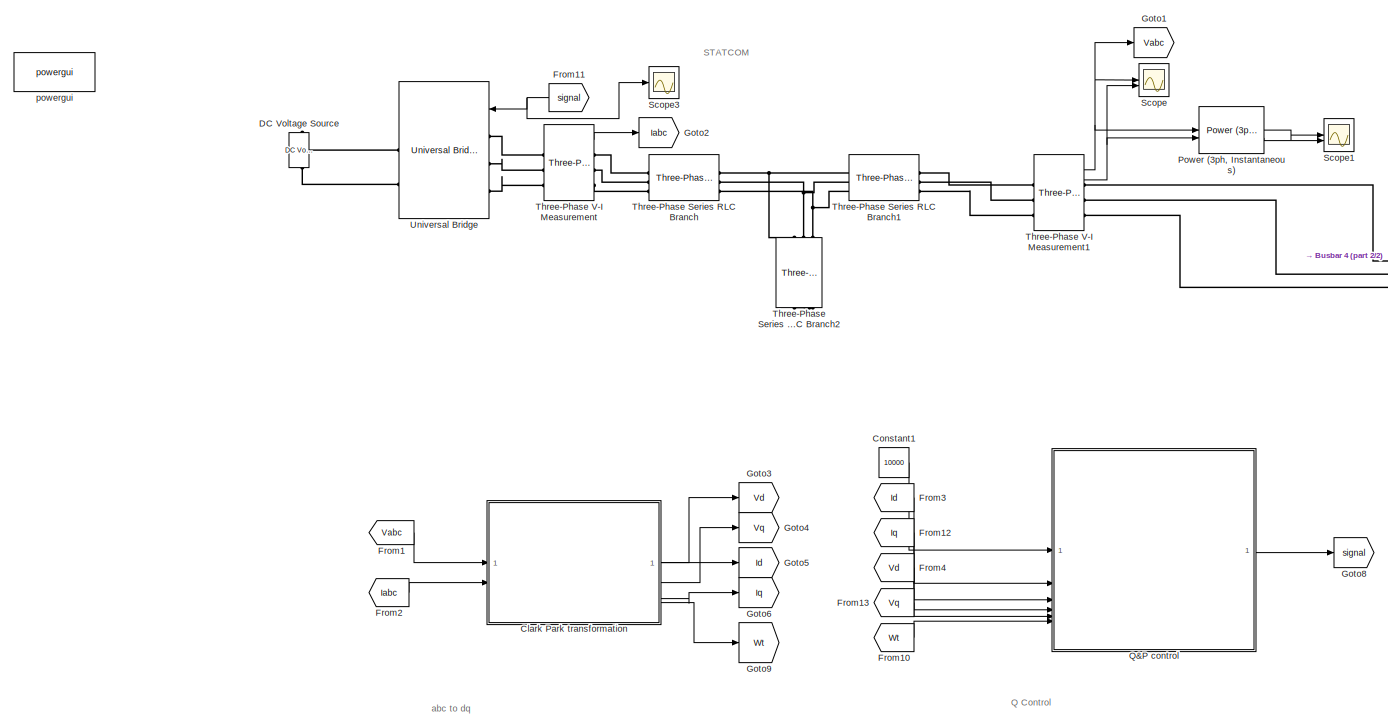
[diagram: root canvas - part 1/2, left side, full height]
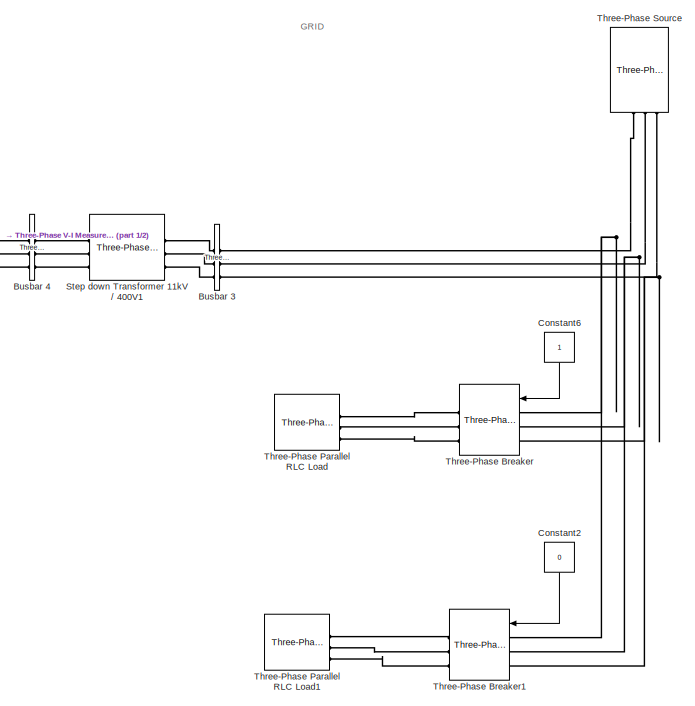
[diagram: root canvas - part 2/2, right side, full height]
MODEL slx_aea7b8782dde
KIND model
CONFIG AbsTol = auto
CONFIG EnableMultiTasking = off
CONFIG FixedStep = auto
CONFIG MaxStep = 1e-4
CONFIG MinStep = auto
CONFIG RelTol = 1e-4
CONFIG SampleTimeConstraint = Unconstrained
CONFIG SolverName = ode23tb
CONFIG StartTime = 0.0
CONFIG StopTime = 1
WORKSPACE source: mxarray member
WORKSPACE Kd_dc = 0.0494240874567
WORKSPACE Ki = 108
WORKSPACE Ki_dc = 1.14837907941
WORKSPACE Kp = 11
WORKSPACE Kp_dc = 0.39412141007
BLOCK [Reference] Busbar 3  REF=spsThreePhaseVIMeasurementLib/Three-Phase
V-I Measurement
  SourceBlock = spsThreePhaseVIMeasurementLib/Three-Phase\nV-I Measurement
  SourceType = Three-Phase VI Measurement
BLOCK [Reference] Busbar 4  REF=spsThreePhaseVIMeasurementLib/Three-Phase
V-I Measurement
  SourceBlock = spsThreePhaseVIMeasurementLib/Three-Phase\nV-I Measurement
  SourceType = Three-Phase VI Measurement
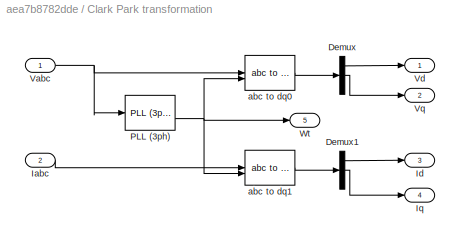
BLOCK [SubSystem] Clark Park transformation
BLOCK [Demux] Clark Park transformation/Demux
  Outputs = 3
BLOCK [Demux] Clark Park transformation/Demux1
  Outputs = 3
BLOCK [Inport] Clark Park transformation/Iabc
  Port = 2
BLOCK [Outport] Clark Park transformation/Id
  Port = 3
BLOCK [Outport] Clark Park transformation/Iq
  Port = 4
BLOCK [Reference] Clark Park transformation/PLL (3ph)  REF=spsPLL3phLib/PLL
(3ph)
  LibrarySourceBlock = sps_lib/Control/PLL\n(3ph)
  SourceBlock = spsPLL3phLib/PLL\n(3ph)
  SourceType = PLL (3ph)
BLOCK [Inport] Clark Park transformation/Vabc
BLOCK [Outport] Clark Park transformation/Vd
BLOCK [Outport] Clark Park transformation/Vq
  Port = 2
BLOCK [Outport] Clark Park transformation/Wt
  Port = 5
BLOCK [Reference] Clark Park transformation/abc to dq0  REF=spsabctodq0Lib/abc to dq0
  LibrarySourceBlock = sps_lib/Control/abc to dq0
  SourceBlock = spsabctodq0Lib/abc to dq0
  SourceType = abc to dq0 Transformation
BLOCK [Reference] Clark Park transformation/abc to dq1  REF=spsabctodq0Lib/abc to dq0
  LibrarySourceBlock = sps_lib/Control/abc to dq0
  SourceBlock = spsabctodq0Lib/abc to dq0
  SourceType = abc to dq0 Transformation
BLOCK [Constant] Constant1
  Value = 10000
BLOCK [Constant] Constant2
  NameLocation = left
  Value = 0
BLOCK [Constant] Constant6
  NameLocation = left
BLOCK [Reference] DC Voltage Source  REF=spsDCVoltageSourceLib/DC Voltage Source
  LibrarySourceBlock = sps_lib/Sources/DC Voltage Source
  SourceBlock = spsDCVoltageSourceLib/DC Voltage Source
  SourceType = DC Voltage Source
BLOCK [From] From1
  GotoTag = Vabc
BLOCK [From] From10
  GotoTag = Wt
BLOCK [From] From11
  GotoTag = signal
BLOCK [From] From12
  GotoTag = Iq
BLOCK [From] From13
  GotoTag = Vq
BLOCK [From] From2
  GotoTag = Iabc
BLOCK [From] From3
  GotoTag = Id
BLOCK [From] From4
  GotoTag = Vd
BLOCK [Goto] Goto1
  GotoTag = Vabc
BLOCK [Goto] Goto2
  GotoTag = Iabc
BLOCK [Goto] Goto3
  GotoTag = Vd
BLOCK [Goto] Goto4
  GotoTag = Vq
BLOCK [Goto] Goto5
  GotoTag = Id
BLOCK [Goto] Goto6
  GotoTag = Iq
BLOCK [Goto] Goto8
  GotoTag = signal
BLOCK [Goto] Goto9
  GotoTag = Wt
BLOCK [Reference] Power (3ph, Instantaneous)  REF=spsPower3phInstantaneousLib/Power
(3ph, Instantaneous)
  LibrarySourceBlock = sps_lib/Sensors and Measurements/Power\n(3ph, Instantaneous)
  SourceBlock = spsPower3phInstantaneousLib/Power\n(3ph, Instantaneous)
  SourceType = Power (3ph, Instantaneous)
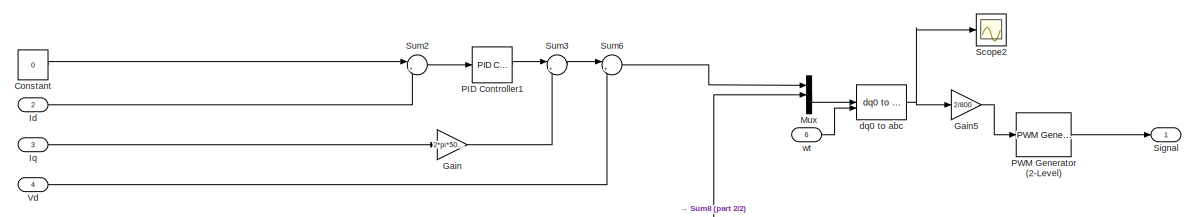
[diagram: Q&P control - part 1/2, full width, top band]
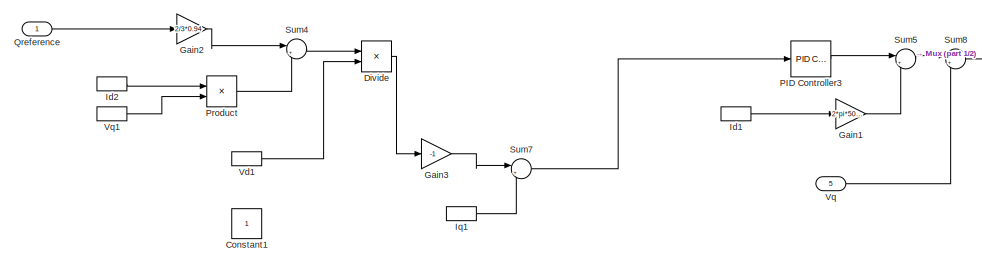
[diagram: Q&P control - part 2/2, bottom left region]
BLOCK [SubSystem] Q&P control
BLOCK [Constant] Q&P control/Constant
  Value = 0
BLOCK [Constant] Q&P control/Constant1
BLOCK [Product] Q&P control/Divide
  Inputs = */
BLOCK [Gain] Q&P control/Gain
  Gain = 2*pi*50*1000e-6
BLOCK [Gain] Q&P control/Gain1
  Gain = 2*pi*50*1000e-6
BLOCK [Gain] Q&P control/Gain2
  Gain = 2/3*0.94
BLOCK [Gain] Q&P control/Gain3
  Gain = -1
BLOCK [Gain] Q&P control/Gain5
  Gain = 2/800
BLOCK [Inport] Q&P control/Id
  Port = 2
BLOCK [InportShadow] Q&P control/Id1
  Port = 2
BLOCK [InportShadow] Q&P control/Id2
  Port = 2
BLOCK [Inport] Q&P control/Iq
  Port = 3
BLOCK [InportShadow] Q&P control/Iq1
  Port = 3
BLOCK [Mux] Q&P control/Mux
  DisplayOption = bar
  Inputs = 3
BLOCK [Reference] Q&P control/PID Controller1  REF=slpidlib/PID Controller
  LibrarySourceBlock = simulink/Continuous/PID Controller
  SourceBlock = slpidlib/PID Controller
  SourceType = PID 1dof
BLOCK [Reference] Q&P control/PID Controller3  REF=slpidlib/PID Controller
  LibrarySourceBlock = simulink/Continuous/PID Controller
  SourceBlock = slpidlib/PID Controller
  SourceType = PID 1dof
BLOCK [Reference] Q&P control/PWM Generator (2-Level)  REF=spsPWMGenerator2LevelLib/PWM Generator
(2-Level)
  LibrarySourceBlock = sps_lib/Power Electronics/Power Electronics Control/PWM Generator\n(2-Level)
  SourceBlock = spsPWMGenerator2LevelLib/PWM Generator\n(2-Level)
  SourceType = PWM Generator (2-Level)
BLOCK [Product] Q&P control/Product
BLOCK [Inport] Q&P control/Qreference
BLOCK [Scope] Q&P control/Scope2
  Floating = off
  NumInputPorts = 1
  ScopeSpecificationString = Simulink.scopes.TimeScopeBlockCfg('CurrentConfiguration', extmgr.ConfigurationSet(extmgr.Configuration('Core','General UI',true),extmgr.Configuration('Core','Source UI',true),extmgr.Configuration('Sources','WiredSimulink',true,'DataLoggingVariableName','ScopeData3'),extmgr.Configuration('Visuals','Time Domain',true,'SerializedDisplays',{struct('MinYLimReal','-21856809829456846848.00000','MaxYLimRe...<+1597ch>
BLOCK [Outport] Q&P control/Signal
BLOCK [Sum] Q&P control/Sum2
  Inputs = |+-
BLOCK [Sum] Q&P control/Sum3
  Inputs = |++
BLOCK [Sum] Q&P control/Sum4
  Inputs = |++
BLOCK [Sum] Q&P control/Sum5
  Inputs = |+-
BLOCK [Sum] Q&P control/Sum6
  Inputs = |++
BLOCK [Sum] Q&P control/Sum7
  Inputs = |+-
BLOCK [Sum] Q&P control/Sum8
  Inputs = |++
BLOCK [Inport] Q&P control/Vd
  Port = 4
BLOCK [InportShadow] Q&P control/Vd1
  Port = 4
BLOCK [Inport] Q&P control/Vq
  Port = 5
BLOCK [InportShadow] Q&P control/Vq1
  Port = 5
BLOCK [Reference] Q&P control/dq0 to abc  REF=spsdq0toabcLib/dq0 to abc
  LibrarySourceBlock = sps_lib/Control/dq0 to abc
  SourceBlock = spsdq0toabcLib/dq0 to abc
  SourceType = dq0 to abc Transformation
BLOCK [Inport] Q&P control/wt
  Port = 6
BLOCK [Scope] Scope
  Floating = off
  NumInputPorts = 2
  ScopeSpecificationString = Simulink.scopes.TimeScopeBlockCfg('CurrentConfiguration', extmgr.ConfigurationSet(extmgr.Configuration('Core','General UI',true),extmgr.Configuration('Core','Source UI',true),extmgr.Configuration('Sources','WiredSimulink',true,'DataLoggingVariableName','ScopeData1'),extmgr.Configuration('Visuals','Time Domain',true,'SerializedDisplays',{struct('MinYLimReal','-311.16531','MaxYLimReal','311.10745','...<+2346ch>
BLOCK [Scope] Scope1
  Floating = off
  NumInputPorts = 2
  ScopeSpecificationString = Simulink.scopes.TimeScopeBlockCfg('CurrentConfiguration', extmgr.ConfigurationSet(extmgr.Configuration('Core','General UI',true),extmgr.Configuration('Core','Source UI',true),extmgr.Configuration('Sources','WiredSimulink',true,'DataLoggingVariableName','ScopeData2'),extmgr.Configuration('Visuals','Time Domain',true,'SerializedDisplays',{struct('MinYLimReal','-2030.62041','MaxYLimReal','1025.75532'...<+2153ch>
BLOCK [Scope] Scope3
  Floating = off
  NumInputPorts = 1
  ScopeSpecificationString = Simulink.scopes.TimeScopeBlockCfg('CurrentConfiguration', extmgr.ConfigurationSet(extmgr.Configuration('Core','General UI',true),extmgr.Configuration('Core','Source UI',true),extmgr.Configuration('Sources','WiredSimulink',true,'DataLoggingVariableName','ScopeData2'),extmgr.Configuration('Visuals','Time Domain',true,'SerializedDisplays',{struct('MinYLimReal','-0.125','MaxYLimReal','1.125','YLabelRe...<+1511ch>
BLOCK [Reference] Step down Transformer 11kV // 400V1  REF=spsThreePhaseTransformerTwoWindingsLib/Three-Phase
Transformer
(Two Windings)
  SourceBlock = spsThreePhaseTransformerTwoWindingsLib/Three-Phase\nTransformer\n(Two Windings)
  SourceType = Three-Phase Transformer (Two Windings)
BLOCK [Reference] Three-Phase Breaker  REF=spsThreePhaseBreakerLib/Three-Phase Breaker
  LibrarySourceBlock = sps_lib/Power Grid Elements/Three-Phase Breaker
  NameLocation = top
  SourceBlock = spsThreePhaseBreakerLib/Three-Phase Breaker
  SourceType = Three-Phase Breaker
BLOCK [Reference] Three-Phase Breaker1  REF=spsThreePhaseBreakerLib/Three-Phase Breaker
  LibrarySourceBlock = sps_lib/Power Grid Elements/Three-Phase Breaker
  NameLocation = top
  SourceBlock = spsThreePhaseBreakerLib/Three-Phase Breaker
  SourceType = Three-Phase Breaker
BLOCK [Reference] Three-Phase Parallel RLC Load  REF=spsThreePhaseParallelRLCLoadLib/Three-Phase
Parallel RLC Load
  AttributesFormatString = \n
  LibrarySourceBlock = sps_lib/Passives/Three-Phase\nParallel RLC Load
  SourceBlock = spsThreePhaseParallelRLCLoadLib/Three-Phase\nParallel RLC Load
  SourceType = Three-Phase Parallel RLC Load
BLOCK [Reference] Three-Phase Parallel RLC Load1  REF=spsThreePhaseParallelRLCLoadLib/Three-Phase
Parallel RLC Load
  AttributesFormatString = \n
  LibrarySourceBlock = sps_lib/Passives/Three-Phase\nParallel RLC Load
  SourceBlock = spsThreePhaseParallelRLCLoadLib/Three-Phase\nParallel RLC Load
  SourceType = Three-Phase Parallel RLC Load
BLOCK [Reference] Three-Phase Series RLC Branch  REF=spsThreePhaseSeriesRLCBranchLib/Three-Phase
Series RLC Branch
  AttributesFormatString = \n
  LibrarySourceBlock = sps_lib/Passives/Three-Phase\nSeries RLC Branch
  SourceBlock = spsThreePhaseSeriesRLCBranchLib/Three-Phase\nSeries RLC Branch
  SourceType = Three-Phase Series RLC Branch
BLOCK [Reference] Three-Phase Series RLC Branch1  REF=spsThreePhaseSeriesRLCBranchLib/Three-Phase
Series RLC Branch
  AttributesFormatString = \n
  LibrarySourceBlock = sps_lib/Passives/Three-Phase\nSeries RLC Branch
  SourceBlock = spsThreePhaseSeriesRLCBranchLib/Three-Phase\nSeries RLC Branch
  SourceType = Three-Phase Series RLC Branch
BLOCK [Reference] Three-Phase Series RLC Branch2  REF=spsThreePhaseSeriesRLCBranchLib/Three-Phase
Series RLC Branch
  AttributesFormatString = \n
  LibrarySourceBlock = sps_lib/Passives/Three-Phase\nSeries RLC Branch
  NameLocation = left
  SourceBlock = spsThreePhaseSeriesRLCBranchLib/Three-Phase\nSeries RLC Branch
  SourceType = Three-Phase Series RLC Branch
BLOCK [Reference] Three-Phase Source  REF=spsThreePhaseSourceLib/Three-Phase Source
  LibrarySourceBlock = sps_lib/Sources/Three-Phase Source
  NameLocation = right
  SourceBlock = spsThreePhaseSourceLib/Three-Phase Source
  SourceType = Three-Phase Source
BLOCK [Reference] Three-Phase V-I Measurement  REF=spsThreePhaseVIMeasurementLib/Three-Phase
V-I Measurement
  LibrarySourceBlock = sps_lib/Sensors and Measurements/Three-Phase\nV-I Measurement
  SourceBlock = spsThreePhaseVIMeasurementLib/Three-Phase\nV-I Measurement
  SourceType = Three-Phase VI Measurement
BLOCK [Reference] Three-Phase V-I Measurement1  REF=spsThreePhaseVIMeasurementLib/Three-Phase
V-I Measurement
  LibrarySourceBlock = sps_lib/Sensors and Measurements/Three-Phase\nV-I Measurement
  SourceBlock = spsThreePhaseVIMeasurementLib/Three-Phase\nV-I Measurement
  SourceType = Three-Phase VI Measurement
BLOCK [Reference] Universal Bridge  REF=spsUniversalBridgeLib/Universal Bridge
  LibrarySourceBlock = sps_lib/Power Electronics/Universal Bridge
  SourceBlock = spsUniversalBridgeLib/Universal Bridge
  SourceType = Universal Bridge
BLOCK [Reference] powergui  REF=sps_lib/powergui
  NameLocation = left
  Priority = 1
  SourceBlock = sps_lib/powergui
  SourceType = PSB option menu block
ANNOTATION (root): GRID
ANNOTATION (root): Q Control
ANNOTATION (root): STATCOM
ANNOTATION (root): abc to dq
LINE Clark Park transformation/Demux1:1 -> Clark Park transformation/Id:1
LINE Clark Park transformation/Demux1:2 -> Clark Park transformation/Iq:1
LINE Clark Park transformation/Demux:1 -> Clark Park transformation/Vd:1
LINE Clark Park transformation/Demux:2 -> Clark Park transformation/Vq:1
LINE Clark Park transformation/Iabc:1 -> Clark Park transformation/abc to dq1:1
NET Clark Park transformation/PLL (3ph):2 -> Clark Park transformation/Wt:1, Clark Park transformation/abc to dq0:2, Clark Park transformation/abc to dq1:2
NET Clark Park transformation/Vabc:1 -> Clark Park transformation/PLL (3ph):1, Clark Park transformation/abc to dq0:1
LINE Clark Park transformation/abc to dq0:1 -> Clark Park transformation/Demux:1
LINE Clark Park transformation/abc to dq1:1 -> Clark Park transformation/Demux1:1
LINE Clark Park transformation:1 -> Goto3:1
LINE Clark Park transformation:2 -> Goto4:1
LINE Clark Park transformation:3 -> Goto5:1
LINE Clark Park transformation:4 -> Goto6:1
LINE Clark Park transformation:5 -> Goto9:1
LINE Constant1:1 -> Q&P control:1
LINE Constant2:1 -> Three-Phase Breaker1:1
LINE Constant6:1 -> Three-Phase Breaker:1
LINE From10:1 -> Q&P control:6
NET From11:1 -> Scope3:1, Universal Bridge:1
LINE From12:1 -> Q&P control:3
LINE From13:1 -> Q&P control:5
LINE From1:1 -> Clark Park transformation:1
LINE From2:1 -> Clark Park transformation:2
LINE From3:1 -> Q&P control:2
LINE From4:1 -> Q&P control:4
LINE Power (3ph, Instantaneous):1 -> Scope1:1
LINE Power (3ph, Instantaneous):2 -> Scope1:2
LINE Q&P control/Constant:1 -> Q&P control/Sum2:1
LINE Q&P control/Divide:1 -> Q&P control/Gain3:1
LINE Q&P control/Gain1:1 -> Q&P control/Sum5:2
LINE Q&P control/Gain2:1 -> Q&P control/Sum4:1
LINE Q&P control/Gain3:1 -> Q&P control/Sum7:1
LINE Q&P control/Gain5:1 -> Q&P control/PWM Generator (2-Level):1
LINE Q&P control/Gain:1 -> Q&P control/Sum3:2
LINE Q&P control/Id1:1 -> Q&P control/Gain1:1
LINE Q&P control/Id2:1 -> Q&P control/Product:1
LINE Q&P control/Id:1 -> Q&P control/Sum2:2
LINE Q&P control/Iq1:1 -> Q&P control/Sum7:2
LINE Q&P control/Iq:1 -> Q&P control/Gain:1
LINE Q&P control/Mux:1 -> Q&P control/dq0 to abc:1
LINE Q&P control/PID Controller1:1 -> Q&P control/Sum3:1
LINE Q&P control/PID Controller3:1 -> Q&P control/Sum5:1
LINE Q&P control/PWM Generator (2-Level):1 -> Q&P control/Signal:1
LINE Q&P control/Product:1 -> Q&P control/Sum4:2
LINE Q&P control/Qreference:1 -> Q&P control/Gain2:1
LINE Q&P control/Sum2:1 -> Q&P control/PID Controller1:1
LINE Q&P control/Sum3:1 -> Q&P control/Sum6:1
LINE Q&P control/Sum4:1 -> Q&P control/Divide:1
LINE Q&P control/Sum5:1 -> Q&P control/Sum8:1
LINE Q&P control/Sum6:1 -> Q&P control/Mux:1
LINE Q&P control/Sum7:1 -> Q&P control/PID Controller3:1
LINE Q&P control/Sum8:1 -> Q&P control/Mux:2
LINE Q&P control/Vd1:1 -> Q&P control/Divide:2
LINE Q&P control/Vd:1 -> Q&P control/Sum6:2
LINE Q&P control/Vq1:1 -> Q&P control/Product:2
LINE Q&P control/Vq:1 -> Q&P control/Sum8:2
NET Q&P control/dq0 to abc:1 -> Q&P control/Gain5:1, Q&P control/Scope2:1
LINE Q&P control/wt:1 -> Q&P control/dq0 to abc:2
LINE Q&P control:1 -> Goto8:1
NET Three-Phase V-I Measurement1:1 -> Goto1:1, Power (3ph, Instantaneous):1, Scope:1
NET Three-Phase V-I Measurement1:2 -> Power (3ph, Instantaneous):2, Scope:2
LINE Three-Phase V-I Measurement:1 -> Goto2:1
PLINE Busbar 3:LConn1 -- Step down Transformer 11kV // 400V1:LConn1
PLINE Busbar 3:LConn2 -- Step down Transformer 11kV // 400V1:LConn2
PLINE Busbar 3:LConn3 -- Step down Transformer 11kV // 400V1:LConn3
PNET net1: Busbar 3:RConn1 -- Three-Phase Breaker1:LConn1 -- Three-Phase Breaker:LConn1 -- Three-Phase Source:RConn1
PNET net2: Busbar 3:RConn2 -- Three-Phase Breaker1:LConn2 -- Three-Phase Breaker:LConn2 -- Three-Phase Source:RConn2
PNET net3: Busbar 3:RConn3 -- Three-Phase Breaker1:LConn3 -- Three-Phase Breaker:LConn3 -- Three-Phase Source:RConn3
PLINE Busbar 4:LConn1 -- Three-Phase V-I Measurement1:RConn1
PLINE Busbar 4:LConn2 -- Three-Phase V-I Measurement1:RConn2
PLINE Busbar 4:LConn3 -- Three-Phase V-I Measurement1:RConn3
PLINE Busbar 4:RConn1 -- Step down Transformer 11kV // 400V1:RConn1
PLINE Busbar 4:RConn2 -- Step down Transformer 11kV // 400V1:RConn2
PLINE Busbar 4:RConn3 -- Step down Transformer 11kV // 400V1:RConn3
PLINE DC Voltage Source:LConn1 -- Universal Bridge:RConn2
PLINE DC Voltage Source:RConn1 -- Universal Bridge:RConn1
PLINE Three-Phase Breaker1:RConn1 -- Three-Phase Parallel RLC Load1:LConn1
PLINE Three-Phase Breaker1:RConn2 -- Three-Phase Parallel RLC Load1:LConn2
PLINE Three-Phase Breaker1:RConn3 -- Three-Phase Parallel RLC Load1:LConn3
PLINE Three-Phase Breaker:RConn1 -- Three-Phase Parallel RLC Load:LConn1
PLINE Three-Phase Breaker:RConn2 -- Three-Phase Parallel RLC Load:LConn2
PLINE Three-Phase Breaker:RConn3 -- Three-Phase Parallel RLC Load:LConn3
PNET net4: Three-Phase Series RLC Branch1:LConn1 -- Three-Phase Series RLC Branch2:LConn1 -- Three-Phase Series RLC Branch:RConn1
PNET net5: Three-Phase Series RLC Branch1:LConn2 -- Three-Phase Series RLC Branch2:LConn2 -- Three-Phase Series RLC Branch:RConn2
PNET net6: Three-Phase Series RLC Branch1:LConn3 -- Three-Phase Series RLC Branch2:LConn3 -- Three-Phase Series RLC Branch:RConn3
PLINE Three-Phase Series RLC Branch1:RConn1 -- Three-Phase V-I Measurement1:LConn1
PLINE Three-Phase Series RLC Branch1:RConn2 -- Three-Phase V-I Measurement1:LConn2
PLINE Three-Phase Series RLC Branch1:RConn3 -- Three-Phase V-I Measurement1:LConn3
PNET net7: Three-Phase Series RLC Branch2:RConn1 -- Three-Phase Series RLC Branch2:RConn2 -- Three-Phase Series RLC Branch2:RConn3
PLINE Three-Phase Series RLC Branch:LConn1 -- Three-Phase V-I Measurement:RConn1
PLINE Three-Phase Series RLC Branch:LConn2 -- Three-Phase V-I Measurement:RConn2
PLINE Three-Phase Series RLC Branch:LConn3 -- Three-Phase V-I Measurement:RConn3
PLINE Three-Phase V-I Measurement:LConn1 -- Universal Bridge:LConn1
PLINE Three-Phase V-I Measurement:LConn2 -- Universal Bridge:LConn2
PLINE Three-Phase V-I Measurement:LConn3 -- Universal Bridge:LConn3
note: NET lines group one-source signal fan-out (src -> all destinations, sorted); 1:1 wires keep LINE; PNET lines group multi-terminal physical nets as a canonical sorted terminal list (undirected conserving connections); 2-terminal nets keep the pairwise PLINE form
